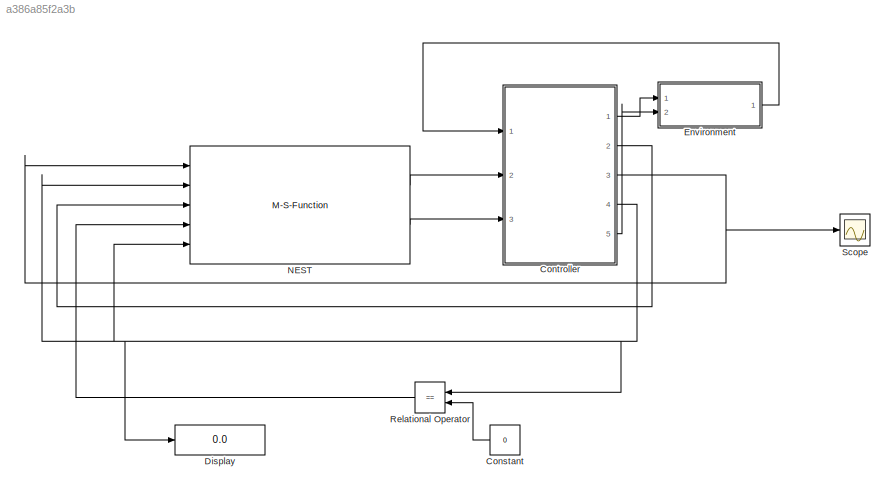
MODEL slx_a386a85f2a3b
KIND model
CONFIG AbsTol = auto
CONFIG EnableMultiTasking = off
CONFIG FixedStep = auto
CONFIG MaxStep = auto
CONFIG MinStep = auto
CONFIG RelTol = 1e-3
CONFIG SampleTimeConstraint = Unconstrained
CONFIG Solver = VariableStepAuto
CONFIG SolverName = VariableStepAuto
CONFIG StartTime = 0.0
CONFIG StopTime = Inf
BLOCK [Constant] Constant
  OutDataTypeStr = uint8
  Value = 0
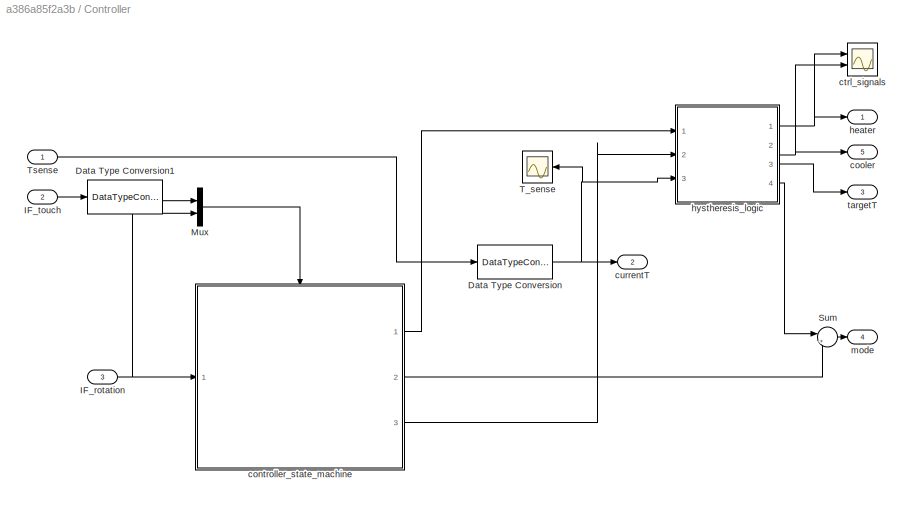
BLOCK [SubSystem] Controller
  Ports = [3, 5]
  RequestExecContextInheritance = off
BLOCK [DataTypeConversion] Controller/Data Type Conversion
  OutDataTypeStr = int16
  RndMeth = Floor
  SaturateOnIntegerOverflow = off
BLOCK [DataTypeConversion] Controller/Data Type Conversion1
  OutDataTypeStr = uint16
  RndMeth = Floor
  SaturateOnIntegerOverflow = off
BLOCK [Inport] Controller/IF_rotation
  IconDisplay = Port number
  Port = 3
BLOCK [Inport] Controller/IF_touch
  IconDisplay = Port number
  Port = 2
BLOCK [Mux] Controller/Mux
  DisplayOption = bar
  Inputs = 2
  Ports = [2, 1]
BLOCK [Sum] Controller/Sum
  IconShape = round
  InputSameDT = off
  Inputs = |++
  OutDataTypeStr = Inherit: Inherit via internal rule
  Ports = [2, 1]
  SaturateOnIntegerOverflow = off
BLOCK [Scope] Controller/T_sense
  Floating = off
  NumInputPorts = 1
  Ports = [1]
  ScopeSpecificationString = Simulink.scopes.TimeScopeBlockCfg('CurrentConfiguration', extmgr.ConfigurationSet(extmgr.Configuration('Core','General UI',true),extmgr.Configuration('Core','Source UI',true),extmgr.Configuration('Sources','WiredSimulink',true,'DataLoggingVariableName','ScopeData2'),extmgr.Configuration('Visuals','Time Domain',true,'SerializedDisplays',{struct('MinYLimReal','166.3864','MaxYLimReal','166.86034','YL...<+1452ch>
BLOCK [Inport] Controller/Tsense
  IconDisplay = Port number
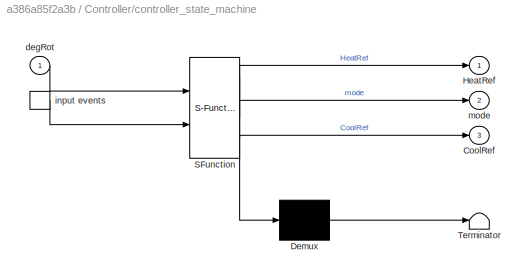
BLOCK [SubSystem] Controller/controller_state_machine
  ErrorFcn = Stateflow.Translate.translate
  PermitHierarchicalResolution = ExplicitOnly
  Ports = [1, 3, 0, 1]
  RequestExecContextInheritance = off
  SFBlockType = Chart
  TreatAsAtomicUnit = on
BLOCK [Demux] Controller/controller_state_machine/ Demux 
  Outputs = 1
  Ports = [1, 1]
BLOCK [S-Function] Controller/controller_state_machine/ SFunction 
  EnableBusSupport = on
  FunctionName = sf_sfun
  PortCounts = [2 4]
  Ports = [2, 4]
  SFcnIsStateOwnerBlock = off
  SFunctionDeploymentMode = off
  Tag = Stateflow S-Function NEST 3
BLOCK [Terminator] Controller/controller_state_machine/ Terminator 
BLOCK [Outport] Controller/controller_state_machine/CoolRef
  IconDisplay = Port number
  Port = 3
BLOCK [Outport] Controller/controller_state_machine/HeatRef
  IconDisplay = Port number
BLOCK [Inport] Controller/controller_state_machine/degRot
  IconDisplay = Port number
BLOCK [TriggerPort] Controller/controller_state_machine/input events
  Ports = [0, 1]
  ShowOutputPort = on
  StatesWhenEnabling = held
  TriggerType = either
  VariantControl = (inherit)
BLOCK [Outport] Controller/controller_state_machine/mode
  IconDisplay = Port number
  Port = 2
BLOCK [Outport] Controller/cooler 
  IconDisplay = Port number
  Port = 5
BLOCK [Scope] Controller/ctrl_signals
  Floating = off
  NumInputPorts = 2
  Ports = [2]
  ScopeSpecificationString = Simulink.scopes.TimeScopeBlockCfg('CurrentConfiguration', extmgr.ConfigurationSet(extmgr.Configuration('Core','General UI',true),extmgr.Configuration('Core','Source UI',true),extmgr.Configuration('Sources','WiredSimulink',true,'DataLoggingVariableName','ScopeData1'),extmgr.Configuration('Visuals','Time Domain',true,'SerializedDisplays',{struct('MinYLimReal','-0.125','MaxYLimReal','1.125','YLabelRe...<+1453ch>
BLOCK [Outport] Controller/currentT
  IconDisplay = Port number
  OutDataTypeStr = int16
  Port = 2
BLOCK [Outport] Controller/heater
  IconDisplay = Port number
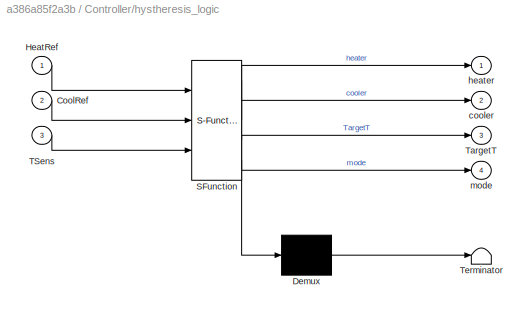
BLOCK [SubSystem] Controller/hystheresis_logic
  BlockKeywords = __PRM__SERIALIZED__DATA__:Stateflow Chart,Stateflow Diagram
  ErrorFcn = Stateflow.Translate.translate
  PermitHierarchicalResolution = ExplicitOnly
  Ports = [3, 4]
  RequestExecContextInheritance = off
  SFBlockType = Chart
  TreatAsAtomicUnit = on
BLOCK [Demux] Controller/hystheresis_logic/ Demux 
  Outputs = 1
  Ports = [1, 1]
BLOCK [S-Function] Controller/hystheresis_logic/ SFunction 
  EnableBusSupport = on
  FunctionName = sf_sfun
  PortCounts = [3 5]
  Ports = [3, 5]
  SFcnIsStateOwnerBlock = off
  SFunctionDeploymentMode = off
  Tag = Stateflow S-Function NEST 2
BLOCK [Terminator] Controller/hystheresis_logic/ Terminator 
BLOCK [Inport] Controller/hystheresis_logic/CoolRef
  IconDisplay = Port number
  Port = 2
BLOCK [Inport] Controller/hystheresis_logic/HeatRef
  IconDisplay = Port number
BLOCK [Inport] Controller/hystheresis_logic/TSens
  IconDisplay = Port number
  Port = 3
BLOCK [Outport] Controller/hystheresis_logic/TargetT
  IconDisplay = Port number
  Port = 3
BLOCK [Outport] Controller/hystheresis_logic/cooler
  IconDisplay = Port number
  Port = 2
BLOCK [Outport] Controller/hystheresis_logic/heater
  IconDisplay = Port number
BLOCK [Outport] Controller/hystheresis_logic/mode
  IconDisplay = Port number
  Port = 4
BLOCK [Outport] Controller/mode
  IconDisplay = Port number
  Port = 4
BLOCK [Outport] Controller/targetT
  IconDisplay = Port number
  OutDataTypeStr = int16
  Port = 3
BLOCK [Display] Display
  Decimation = 1
  Ports = [1]
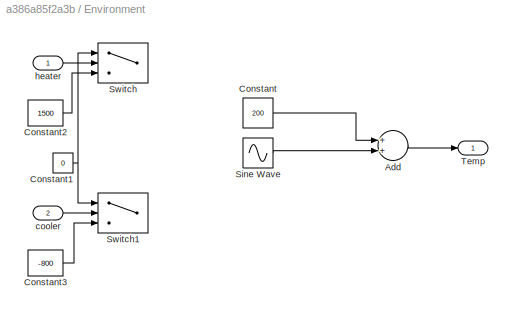
BLOCK [SubSystem] Environment
  Ports = [2, 1]
  RequestExecContextInheritance = off
BLOCK [Sum] Environment/Add
  InputSameDT = off
  OutDataTypeStr = Inherit: Inherit via internal rule
  Ports = [2, 1]
  SaturateOnIntegerOverflow = off
BLOCK [Constant] Environment/Constant
  Value = 200
BLOCK [Constant] Environment/Constant1
  Value = 0
BLOCK [Constant] Environment/Constant2
  Value = 1500
BLOCK [Constant] Environment/Constant3
  Value = -800
BLOCK [Sin] Environment/Sine Wave
  Amplitude = 100
  Frequency = 0.001
  Ports = [0, 1]
  SampleTime = 0
BLOCK [Switch] Environment/Switch
  Criteria = u2 > Threshold
  InputSameDT = off
  SaturateOnIntegerOverflow = off
BLOCK [Switch] Environment/Switch1
  Criteria = u2 > Threshold
  InputSameDT = off
  SaturateOnIntegerOverflow = off
BLOCK [Outport] Environment/Temp
  IconDisplay = Port number
BLOCK [Inport] Environment/cooler 
  IconDisplay = Port number
  Port = 2
BLOCK [Inport] Environment/heater
  IconDisplay = Port number
BLOCK [M-S-Function] NEST
  FunctionName = WI_Nest
  Ports = [5, 2]
BLOCK [RelationalOperator] Relational Operator
  InputSameDT = off
  Operator = ==
  OutDataTypeStr = boolean
  Ports = [2, 1]
  RndMeth = Simplest
BLOCK [Scope] Scope
  Floating = off
  NumInputPorts = 1
  Ports = [1]
  ScopeSpecificationString = Simulink.scopes.TimeScopeBlockCfg('CurrentConfiguration', extmgr.ConfigurationSet(extmgr.Configuration('Core','General UI',true),extmgr.Configuration('Core','Source UI',true),extmgr.Configuration('Sources','WiredSimulink',true),extmgr.Configuration('Visuals','Time Domain',true,'SerializedDisplays',{struct('MinYLimReal','-3740.00000','MaxYLimReal','-1740.00000','YLabelReal','','MinYLimMag','  0.000...<+1356ch>
LINE Constant:1 -> Relational Operator:2
LINE Controller/Data Type Conversion1:1 -> Controller/Mux:1
NET Controller/Data Type Conversion:1 -> Controller/T_sense:1, Controller/currentT:1, Controller/hystheresis_logic:3
NET Controller/IF_rotation:1 -> Controller/Mux:2, Controller/controller_state_machine:1
LINE Controller/IF_touch:1 -> Controller/Data Type Conversion1:1
LINE Controller/Mux:1 -> Controller/controller_state_machine:trigger
LINE Controller/Sum:1 -> Controller/mode:1
LINE Controller/Tsense:1 -> Controller/Data Type Conversion:1
LINE Controller/controller_state_machine:1 -> Controller/hystheresis_logic:1
LINE Controller/controller_state_machine:2 -> Controller/Sum:2
LINE Controller/controller_state_machine:3 -> Controller/hystheresis_logic:2
NET Controller/hystheresis_logic:1 -> Controller/ctrl_signals:1, Controller/heater:1
NET Controller/hystheresis_logic:2 -> Controller/cooler :1, Controller/ctrl_signals:2
LINE Controller/hystheresis_logic:3 -> Controller/targetT:1
LINE Controller/hystheresis_logic:4 -> Controller/Sum:1
LINE Controller:1 -> Environment:1
LINE Controller:2 -> NEST:3
NET Controller:3 -> NEST:1, Scope:1
NET Controller:4 -> Display:1, NEST:2, NEST:5, Relational Operator:1
LINE Controller:5 -> Environment:2
LINE Environment/Add:1 -> Environment/Temp:1
NET Environment/Constant1:1 -> Environment/Switch1:1, Environment/Switch:1
LINE Environment/Constant2:1 -> Environment/Switch:3
LINE Environment/Constant3:1 -> Environment/Switch1:3
LINE Environment/Constant:1 -> Environment/Add:1
LINE Environment/Sine Wave:1 -> Environment/Add:2
LINE Environment/cooler :1 -> Environment/Switch1:2
LINE Environment/heater:1 -> Environment/Switch:2
LINE Environment:1 -> Controller:1
LINE NEST:1 -> Controller:2
LINE NEST:2 -> Controller:3
LINE Relational Operator:1 -> NEST:4
note: NET lines group one-source signal fan-out (src -> all destinations, sorted); 1:1 wires keep LINE
CHART Controller/hystheresis_logic states=4 transitions=5
  STATE_LABEL 'Heating\nen:heater=1;mode=2;TargetT=HeatRef\nex:heater=0'
  STATE_LABEL 'Cooling\nen:cooler=1;mode=1;TargetT=CoolRef\nex:cooler=0'
  STATE_LABEL 'Inactive\nen:mode=0\n'
  STATE_LABEL 'se parto già con la temperatura alta o bassa devo valutare le transizioni mentre entro nella flowchart'
CHART Controller/controller_state_machine states=7 transitions=8
  STATE_LABEL 'Off\nen: mode=100'
  STATE_LABEL 'On'
  STATE_LABEL 'ModeSetup\nen:mode=40'
  STATE_LABEL 'WeatherForecast\nen:mode=30'
  STATE_LABEL 'HeatingCooling\nen: mode=0'
  STATE_LABEL 'HeatingSetup\nen:mode=10'
  STATE_LABEL 'CoolingSetup\nen:mode=20'
  STATE_LABEL 'LCDButton'
  STATE_LABEL 'LCDButton'
  STATE_LABEL 'LCDButton'
  STATE_LABEL 'LCDButton'
  STATE_LABEL 'LCDButton'
  STATE_LABEL 'ModeSetup\nen:mode=40'
  STATE_LABEL 'WeatherForecast\nen:mode=30'
  STATE_LABEL 'HeatingCooling\nen: mode=0'
  STATE_LABEL 'HeatingSetup\nen:mode=10'
  STATE_LABEL 'CoolingSetup\nen:mode=20'
